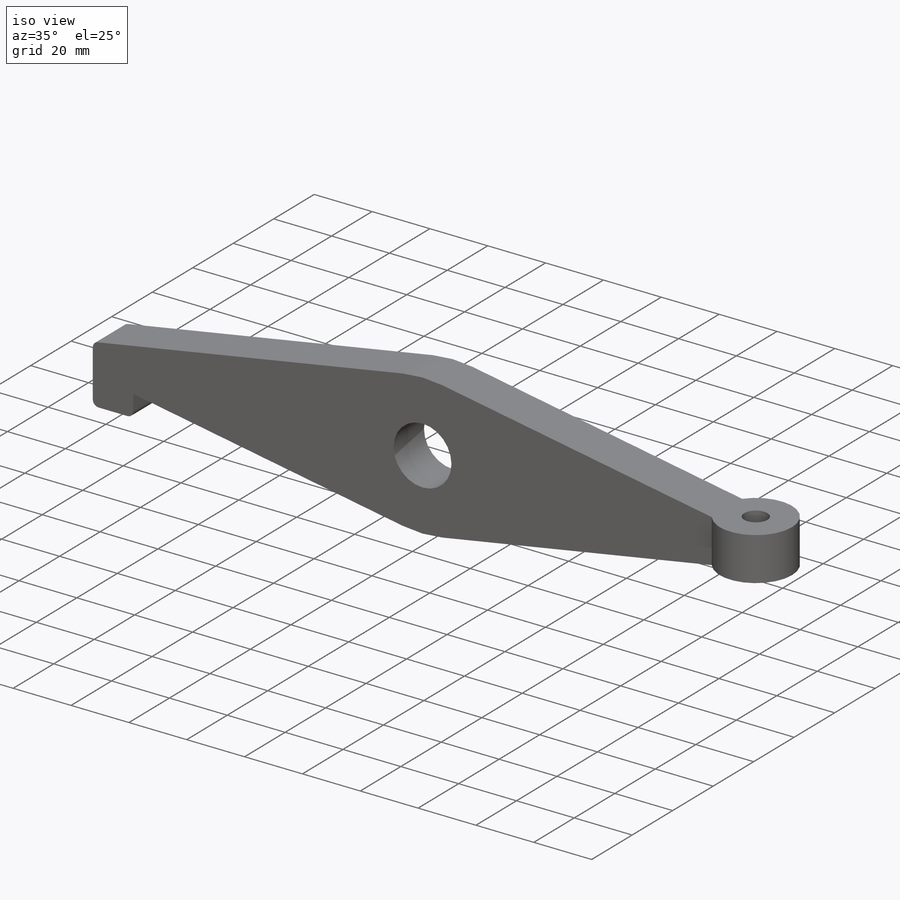
[diagram: iso view]
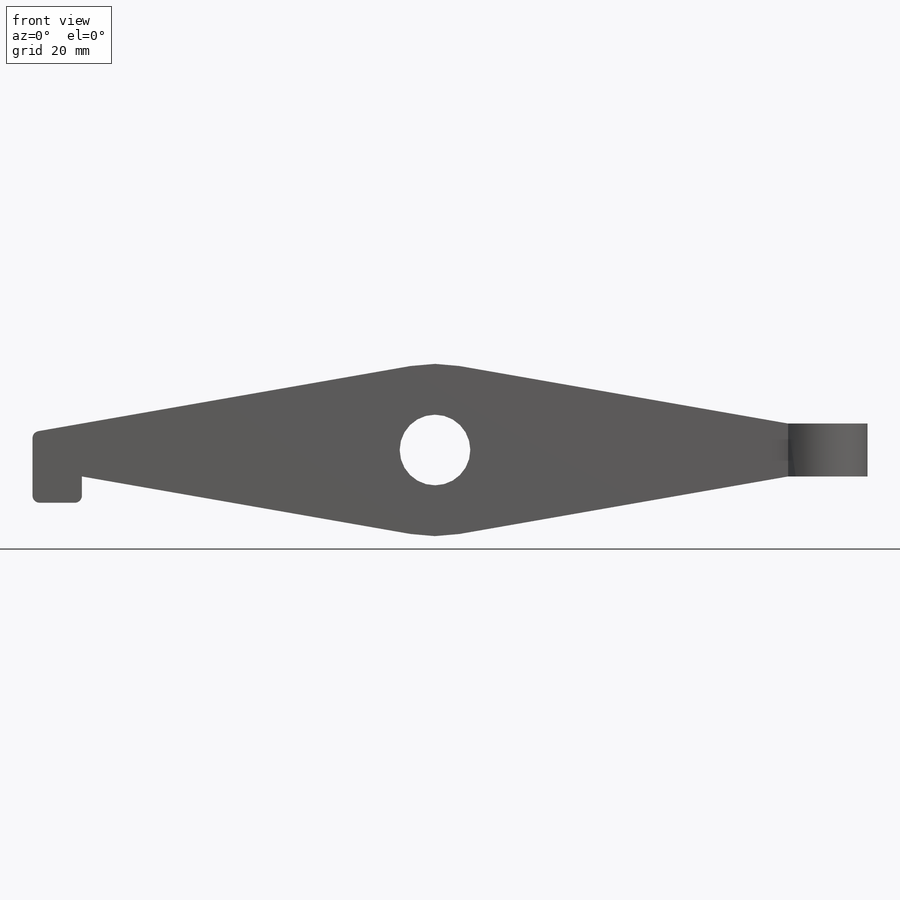
[diagram: front view]
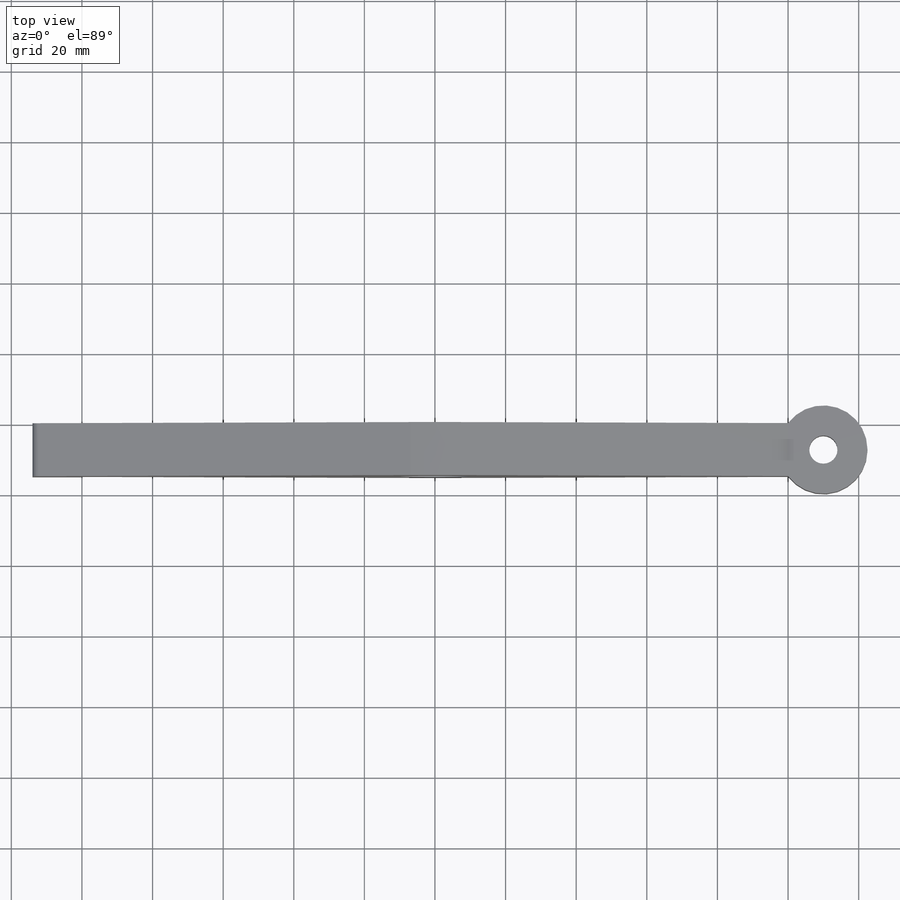
[diagram: top view]
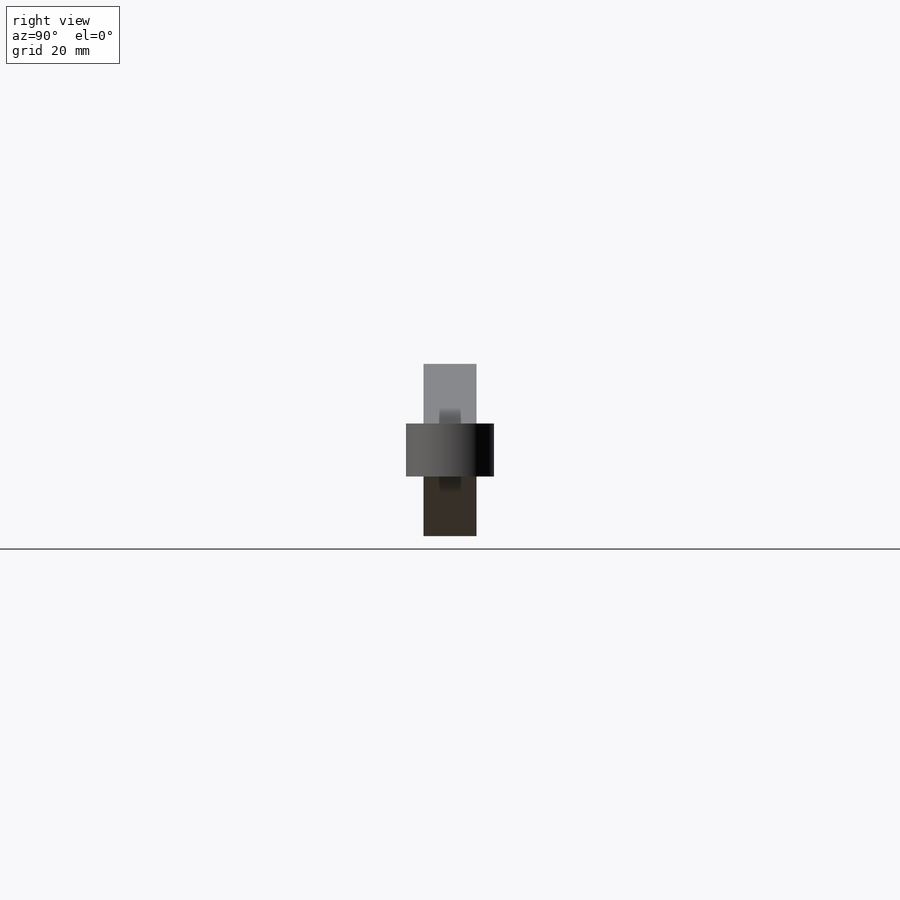
[diagram: right view]
SOLIDWORKS PART (.sldprt)
format: sldprt  version: not decoded by parser v0  size: 196,608 bytes
history: native  units: mm
features: sketch x3, extrude x3, material x1, cut_extrude x1, plane x1 (+12 scaffold rows collapsed)
feature tree (21):
  scaffold x12  (default folders/planes/origin — collapsed)
  material  "Material <not specified>"
  sketch  "Sketch1"  dims[c1.D1=~8.334242mm c1.D2=20.0mm c1.D5=40.0mm c1.D6=40.0mm c1.D9=2.0mm c2.D1=100.0mm c2.D3=15.0mm c2.D4=25.0mm c2.D7=14.0mm c2.D8=20.0mm]
  extrude  "Boss-Extrude1"  Depth=15mm
  sketch  "Sketch2"  dims[D1=25.0mm D2=8.0mm]
  extrude  "Boss-Extrude2"  Depth=15mm
  sketch  "Sketch3"  dims[D1=5.0mm]
  cut_extrude  "Cut-Extrude1"  Depth=5mm
  extrude  "Axis2"  [1 undecoded]
  plane  "Plane1"
decode coverage: 6 of 7 modeling features carry decoded parameters
note: ~ marks probable driven/reference dimensions
note: 1 parameter value undecoded
note: suppression state not decoded; provenance and decode notes live in map.json
